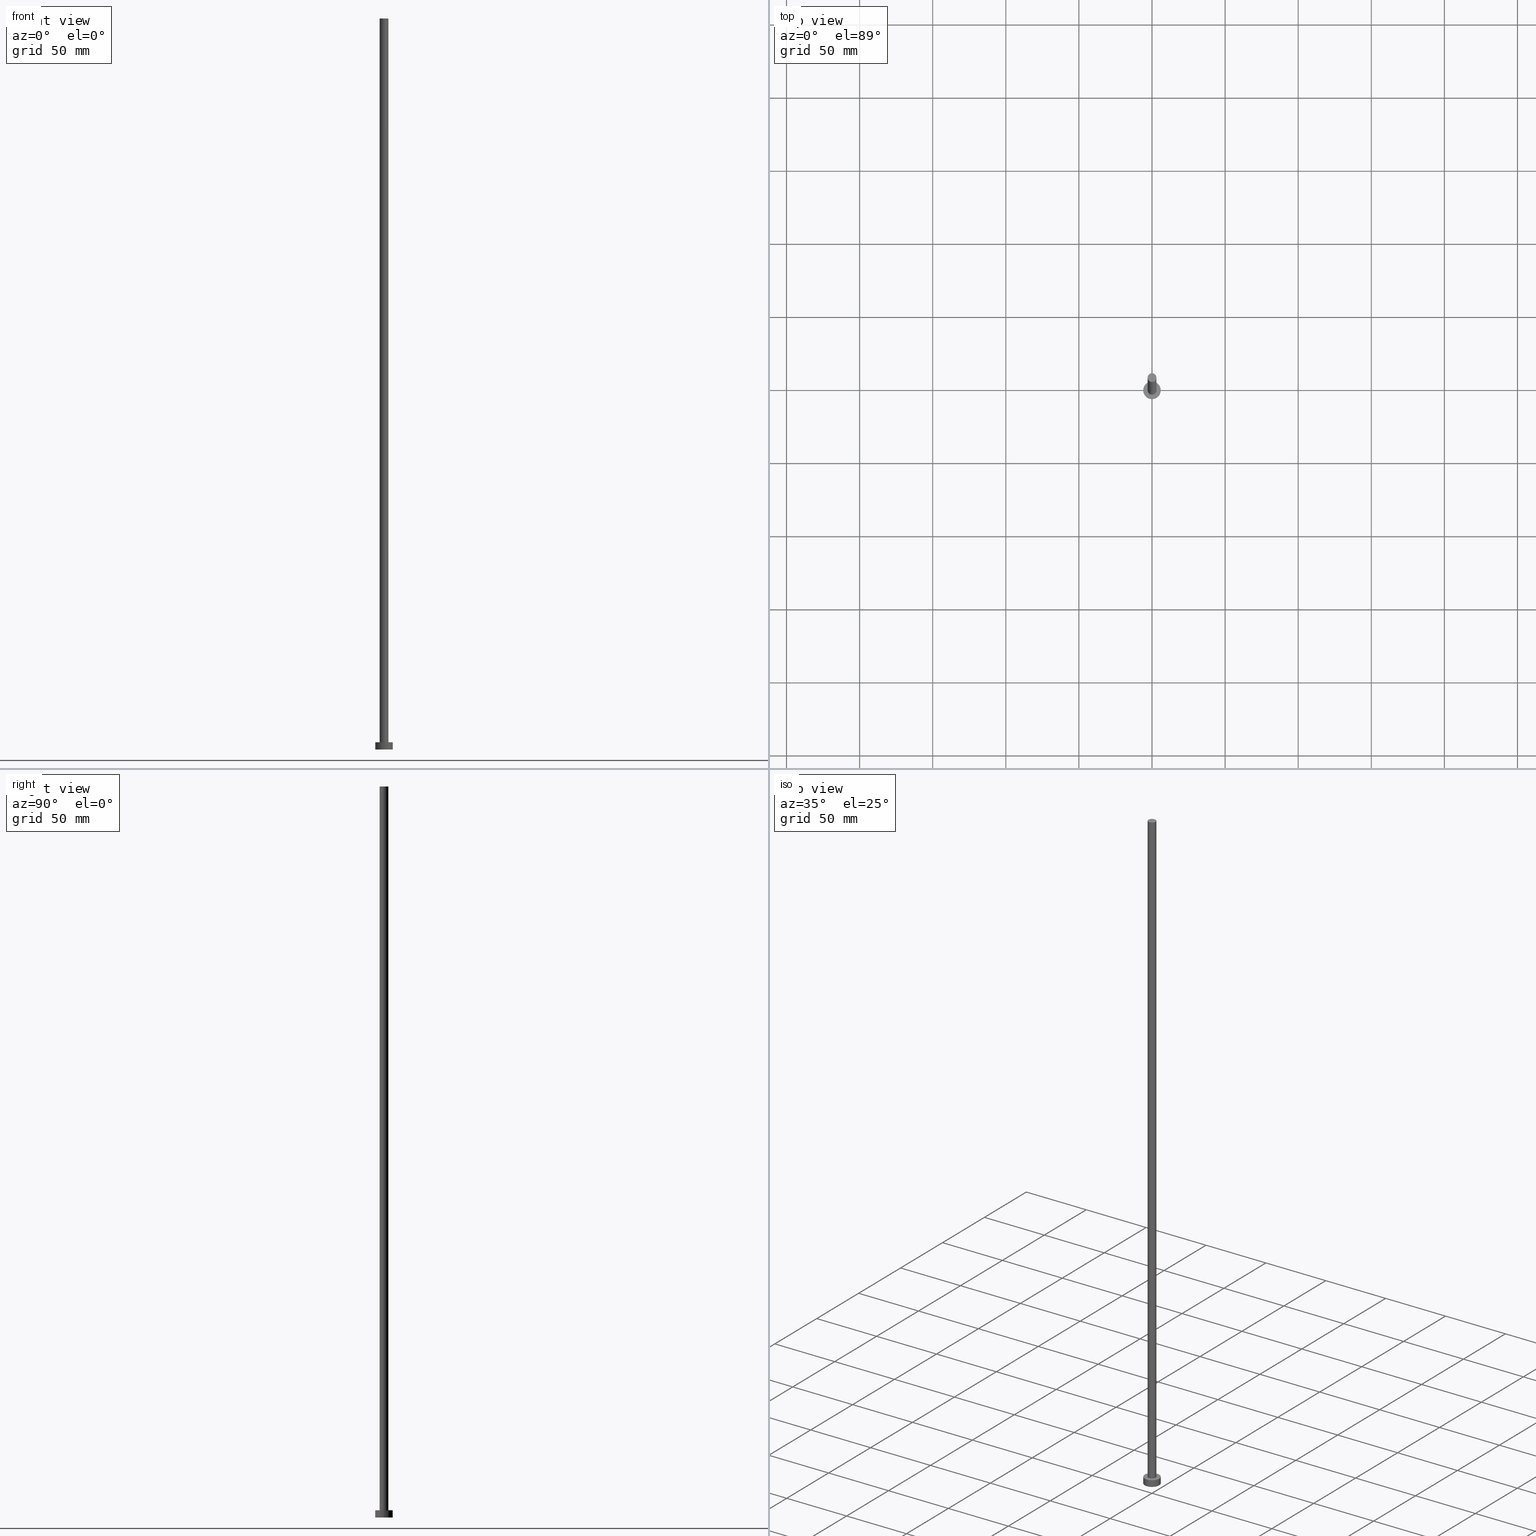
[diagram: canonical four-view strip — front | top / right | iso, engineering-drawing reading convention]
A machine part, canonical four-view strip (front | top / right | iso — engineering-drawing reading convention). The complete STEP part file that produces these views, byte-faithful:
ISO-10303-21;
HEADER;
FILE_DESCRIPTION (( 'STEP AP203' ),
    '1' );
FILE_NAME ('e400.STEP',
    '2023-02-13T15:21:25',
    ( '' ),
    ( '' ),
    'SwSTEP 2.0',
    'SolidWorks 2019',
    '' );
FILE_SCHEMA (( 'CONFIG_CONTROL_DESIGN' ));
ENDSEC;

DATA;
#1 = AXIS2_PLACEMENT_3D ( 'NONE', #112, #217, #117 ) ;
#2 = DIRECTION ( 'NONE',  ( 1.000000000000000000, 0.000000000000000000, 0.000000000000000000 ) ) ;
#3 = VERTEX_POINT ( 'NONE', #106 ) ;
#4 = ORIENTED_EDGE ( 'NONE', *, *, #161, .T. ) ;
#5 = APPLICATION_PROTOCOL_DEFINITION ( 'international standard', 'config_control_design', 1994, #11 ) ;
#6 = LINE ( 'NONE', #84, #151 ) ;
#7 = DIRECTION ( 'NONE',  ( -0.000000000000000000, -0.000000000000000000, -1.000000000000000000 ) ) ;
#8 = APPLICATION_CONTEXT ( 'configuration controlled 3d designs of mechanical parts and assemblies' ) ;
#9 = DIRECTION ( 'NONE',  ( 0.000000000000000000, 0.000000000000000000, 1.000000000000000000 ) ) ;
#10 = PRODUCT_DEFINITION_FORMATION_WITH_SPECIFIED_SOURCE ( 'LIBOVOLN�', '', #166, .NOT_KNOWN. ) ;
#11 = APPLICATION_CONTEXT ( 'configuration controlled 3d designs of mechanical parts and assemblies' ) ;
#12 = DIRECTION ( 'NONE',  ( 1.000000000000000000, 0.000000000000000000, 0.000000000000000000 ) ) ;
#13 = ADVANCED_FACE ( 'NONE', ( #208 ), #80, .T. ) ;
#14 = APPROVAL_STATUS ( 'not_yet_approved' ) ;
#15 = DATE_TIME_ROLE ( 'creation_date' ) ;
#16 = CARTESIAN_POINT ( 'NONE',  ( 0.000000000000000000, 0.000000000000000000, 5.000000000000000000 ) ) ;
#17 = FACE_OUTER_BOUND ( 'NONE', #155, .T. ) ;
#18 = CC_DESIGN_APPROVAL ( #94, ( #10 ) ) ;
#19 = AXIS2_PLACEMENT_3D ( 'NONE', #233, #47, #49 ) ;
#20 = AXIS2_PLACEMENT_3D ( 'NONE', #126, #48, #67 ) ;
#21 = ORIENTED_EDGE ( 'NONE', *, *, #60, .F. ) ;
#22 = ADVANCED_FACE ( 'NONE', ( #209, #168 ), #127, .T. ) ;
#23 = PERSON_AND_ORGANIZATION_ROLE ( 'design_owner' ) ;
#24 = DATE_AND_TIME ( #128, #66 ) ;
#25 = CARTESIAN_POINT ( 'NONE',  ( 0.000000000000000000, 0.000000000000000000, 5.000000000000000000 ) ) ;
#26 = CC_DESIGN_PERSON_AND_ORGANIZATION_ASSIGNMENT ( #206, #173, ( #10 ) ) ;
#27 = CARTESIAN_POINT ( 'NONE',  ( -3.000000000000000444, 0.000000000000000000, 500.0000000000000000 ) ) ;
#28 = DIRECTION ( 'NONE',  ( -0.000000000000000000, -0.000000000000000000, -1.000000000000000000 ) ) ;
#29 = CIRCLE ( 'NONE', #59, 6.000000000000000888 ) ;
#30 = APPROVAL_PERSON_ORGANIZATION ( #236, #45, #63 ) ;
#31 = PERSON_AND_ORGANIZATION_ROLE ( 'creator' ) ;
#32 = DIRECTION ( 'NONE',  ( 1.000000000000000000, 0.000000000000000000, 0.000000000000000000 ) ) ;
#33 = DIRECTION ( 'NONE',  ( 0.000000000000000000, 0.000000000000000000, 1.000000000000000000 ) ) ;
#34 = APPLICATION_PROTOCOL_DEFINITION ( 'international standard', 'config_control_design', 1994, #8 ) ;
#35 = CYLINDRICAL_SURFACE ( 'NONE', #36, 3.000000000000000444 ) ;
#36 = AXIS2_PLACEMENT_3D ( 'NONE', #255, #91, #213 ) ;
#37 = CARTESIAN_POINT ( 'NONE',  ( 3.000000000000000444, 3.673940397442060361E-16, 5.000000000000000000 ) ) ;
#38 = CARTESIAN_POINT ( 'NONE',  ( 0.000000000000000000, 0.000000000000000000, 500.0000000000000000 ) ) ;
#39 = EDGE_CURVE ( 'NONE', #120, #142, #69, .T. ) ;
#40 = EDGE_LOOP ( 'NONE', ( #4, #157 ) ) ;
#41 = AXIS2_PLACEMENT_3D ( 'NONE', #16, #252, #71 ) ;
#42 = VERTEX_POINT ( 'NONE', #141 ) ;
#43 = CALENDAR_DATE ( 2023, 13, 2 ) ;
#44 = PLANE ( 'NONE',  #20 ) ;
#45 = APPROVAL ( #113, 'NEUR�EN�' ) ;
#46 = CIRCLE ( 'NONE', #1, 6.000000000000000888 ) ;
#47 = DIRECTION ( 'NONE',  ( -0.000000000000000000, -0.000000000000000000, -1.000000000000000000 ) ) ;
#48 = DIRECTION ( 'NONE',  ( 0.000000000000000000, 0.000000000000000000, 1.000000000000000000 ) ) ;
#49 = DIRECTION ( 'NONE',  ( -1.000000000000000000, 0.000000000000000000, 0.000000000000000000 ) ) ;
#50 = CC_DESIGN_PERSON_AND_ORGANIZATION_ASSIGNMENT ( #51, #31, ( #221 ) ) ;
#51 = PERSON_AND_ORGANIZATION ( #179, #145 ) ;
#52 = PERSON_AND_ORGANIZATION_ROLE ( 'classification_officer' ) ;
#53 =( LENGTH_UNIT ( ) NAMED_UNIT ( * ) SI_UNIT ( .MILLI., .METRE. ) );
#54 = DIRECTION ( 'NONE',  ( 0.000000000000000000, 0.000000000000000000, 1.000000000000000000 ) ) ;
#55 = VECTOR ( 'NONE', #229, 1000.000000000000000 ) ;
#56 = AXIS2_PLACEMENT_3D ( 'NONE', #172, #146, #238 ) ;
#57 = CARTESIAN_POINT ( 'NONE',  ( 6.000000000000000888, 7.347880794884120722E-16, 5.000000000000000000 ) ) ;
#58 = ADVANCED_FACE ( 'NONE', ( #234 ), #129, .T. ) ;
#59 = AXIS2_PLACEMENT_3D ( 'NONE', #133, #33, #152 ) ;
#60 = EDGE_CURVE ( 'NONE', #182, #42, #85, .T. ) ;
#61 = APPROVAL_PERSON_ORGANIZATION ( #125, #97, #123 ) ;
#62 = DATE_AND_TIME ( #43, #93 ) ;
#63 = APPROVAL_ROLE ( '' ) ;
#64 = DIRECTION ( 'NONE',  ( -0.000000000000000000, -0.000000000000000000, -1.000000000000000000 ) ) ;
#65 = CLOSED_SHELL ( 'NONE', ( #58, #13, #223, #22, #211, #139, #81 ) ) ;
#66 = LOCAL_TIME ( 16, 21, 25.00000000000000000, #103 ) ;
#67 = DIRECTION ( 'NONE',  ( 1.000000000000000000, 0.000000000000000000, -0.000000000000000000 ) ) ;
#68 = COORDINATED_UNIVERSAL_TIME_OFFSET ( 1, 0, .AHEAD. ) ;
#69 = LINE ( 'NONE', #143, #87 ) ;
#70 = DIRECTION ( 'NONE',  ( 0.000000000000000000, 0.000000000000000000, 1.000000000000000000 ) ) ;
#71 = DIRECTION ( 'NONE',  ( 1.000000000000000000, 0.000000000000000000, 0.000000000000000000 ) ) ;
#72 = PERSON_AND_ORGANIZATION ( #179, #145 ) ;
#73 = DIRECTION ( 'NONE',  ( 1.000000000000000000, 0.000000000000000000, 0.000000000000000000 ) ) ;
#74 = AXIS2_PLACEMENT_3D ( 'NONE', #163, #250, #12 ) ;
#75 = DIRECTION ( 'NONE',  ( 0.000000000000000000, 0.000000000000000000, 1.000000000000000000 ) ) ;
#76 = ORIENTED_EDGE ( 'NONE', *, *, #135, .F. ) ;
#77 = ORIENTED_EDGE ( 'NONE', *, *, #130, .T. ) ;
#78 = VERTEX_POINT ( 'NONE', #232 ) ;
#79 = APPROVAL_ROLE ( '' ) ;
#80 = CYLINDRICAL_SURFACE ( 'NONE', #19, 6.000000000000000888 ) ;
#81 = ADVANCED_FACE ( 'NONE', ( #164 ), #44, .T. ) ;
#82 = APPROVAL_DATE_TIME ( #24, #97 ) ;
#83 = DESIGN_CONTEXT ( 'detailed design', #11, 'design' ) ;
#84 = CARTESIAN_POINT ( 'NONE',  ( -6.000000000000000888, 0.000000000000000000, 5.000000000000000000 ) ) ;
#85 = LINE ( 'NONE', #27, #55 ) ;
#86 = AXIS2_PLACEMENT_3D ( 'NONE', #187, #9, #167 ) ;
#87 = VECTOR ( 'NONE', #64, 1000.000000000000000 ) ;
#88 = APPROVAL_PERSON_ORGANIZATION ( #72, #94, #79 ) ;
#89 = EDGE_CURVE ( 'NONE', #142, #42, #121, .T. ) ;
#90 = ORIENTED_EDGE ( 'NONE', *, *, #89, .T. ) ;
#91 = DIRECTION ( 'NONE',  ( -0.000000000000000000, -0.000000000000000000, -1.000000000000000000 ) ) ;
#92 = CIRCLE ( 'NONE', #74, 3.000000000000000444 ) ;
#93 = LOCAL_TIME ( 16, 21, 25.00000000000000000, #68 ) ;
#94 = APPROVAL ( #14, 'NEUR�EN�' ) ;
#95 = EDGE_CURVE ( 'NONE', #220, #175, #165, .T. ) ;
#96 = COORDINATED_UNIVERSAL_TIME_OFFSET ( 1, 0, .AHEAD. ) ;
#97 = APPROVAL ( #226, 'NEUR�EN�' ) ;
#98 = CARTESIAN_POINT ( 'NONE',  ( -6.000000000000000888, 0.000000000000000000, 5.000000000000000000 ) ) ;
#99 = ORIENTED_EDGE ( 'NONE', *, *, #39, .F. ) ;
#100 = ORIENTED_EDGE ( 'NONE', *, *, #178, .T. ) ;
#101 = ORIENTED_EDGE ( 'NONE', *, *, #161, .F. ) ;
#102 = CALENDAR_DATE ( 2023, 13, 2 ) ;
#103 = COORDINATED_UNIVERSAL_TIME_OFFSET ( 1, 0, .AHEAD. ) ;
#104 = PRODUCT_RELATED_PRODUCT_CATEGORY ( 'detail', '', ( #166 ) ) ;
#105 = DIRECTION ( 'NONE',  ( -1.000000000000000000, 0.000000000000000000, 0.000000000000000000 ) ) ;
#106 = CARTESIAN_POINT ( 'NONE',  ( 6.000000000000000888, 7.347880794884120722E-16, 0.000000000000000000 ) ) ;
#107 = CC_DESIGN_PERSON_AND_ORGANIZATION_ASSIGNMENT ( #159, #52, ( #154 ) ) ;
#108 = AXIS2_PLACEMENT_3D ( 'NONE', #148, #75, #73 ) ;
#109 = SECURITY_CLASSIFICATION_LEVEL ( 'unclassified' ) ;
#110 = COORDINATED_UNIVERSAL_TIME_OFFSET ( 1, 0, .AHEAD. ) ;
#111 = CC_DESIGN_PERSON_AND_ORGANIZATION_ASSIGNMENT ( #254, #23, ( #166 ) ) ;
#112 = CARTESIAN_POINT ( 'NONE',  ( 0.000000000000000000, 0.000000000000000000, 0.000000000000000000 ) ) ;
#113 = APPROVAL_STATUS ( 'not_yet_approved' ) ;
#114 = CC_DESIGN_SECURITY_CLASSIFICATION ( #154, ( #10 ) ) ;
#115 = LINE ( 'NONE', #193, #240 ) ;
#116 = FACE_OUTER_BOUND ( 'NONE', #177, .T. ) ;
#117 = DIRECTION ( 'NONE',  ( 1.000000000000000000, 0.000000000000000000, 0.000000000000000000 ) ) ;
#118 = EDGE_CURVE ( 'NONE', #175, #78, #6, .T. ) ;
#119 = EDGE_LOOP ( 'NONE', ( #137, #77 ) ) ;
#120 = VERTEX_POINT ( 'NONE', #247 ) ;
#121 = CIRCLE ( 'NONE', #86, 3.000000000000000444 ) ;
#122 = CIRCLE ( 'NONE', #41, 6.000000000000000888 ) ;
#123 = APPROVAL_ROLE ( '' ) ;
#124 = ORIENTED_EDGE ( 'NONE', *, *, #39, .T. ) ;
#125 = PERSON_AND_ORGANIZATION ( #179, #145 ) ;
#126 = CARTESIAN_POINT ( 'NONE',  ( 0.000000000000000000, 0.000000000000000000, 500.0000000000000000 ) ) ;
#127 = PLANE ( 'NONE',  #200 ) ;
#128 = CALENDAR_DATE ( 2023, 13, 2 ) ;
#129 = CYLINDRICAL_SURFACE ( 'NONE', #132, 3.000000000000000444 ) ;
#130 = EDGE_CURVE ( 'NONE', #120, #182, #92, .T. ) ;
#131 = CYLINDRICAL_SURFACE ( 'NONE', #180, 6.000000000000000888 ) ;
#132 = AXIS2_PLACEMENT_3D ( 'NONE', #140, #7, #105 ) ;
#133 = CARTESIAN_POINT ( 'NONE',  ( 0.000000000000000000, 0.000000000000000000, 0.000000000000000000 ) ) ;
#134 = ORIENTED_EDGE ( 'NONE', *, *, #176, .F. ) ;
#135 = EDGE_CURVE ( 'NONE', #42, #142, #224, .T. ) ;
#136 = ORIENTED_EDGE ( 'NONE', *, *, #130, .F. ) ;
#137 = ORIENTED_EDGE ( 'NONE', *, *, #174, .T. ) ;
#138 = DATE_TIME_ROLE ( 'classification_date' ) ;
#139 = ADVANCED_FACE ( 'NONE', ( #116 ), #35, .T. ) ;
#140 = CARTESIAN_POINT ( 'NONE',  ( 0.000000000000000000, 0.000000000000000000, 500.0000000000000000 ) ) ;
#141 = CARTESIAN_POINT ( 'NONE',  ( -3.000000000000000444, 0.000000000000000000, 5.000000000000000000 ) ) ;
#142 = VERTEX_POINT ( 'NONE', #37 ) ;
#143 = CARTESIAN_POINT ( 'NONE',  ( 3.000000000000000444, 3.673940397442060361E-16, 500.0000000000000000 ) ) ;
#144 = DATE_AND_TIME ( #235, #188 ) ;
#145 = ORGANIZATION ( 'NEUR�EN�', 'NEUR�EN�', '' ) ;
#146 = DIRECTION ( 'NONE',  ( 0.000000000000000000, 0.000000000000000000, 1.000000000000000000 ) ) ;
#147 = CARTESIAN_POINT ( 'NONE',  ( 0.000000000000000000, 0.000000000000000000, 0.000000000000000000 ) ) ;
#148 = CARTESIAN_POINT ( 'NONE',  ( 0.000000000000000000, 0.000000000000000000, 5.000000000000000000 ) ) ;
#149 = EDGE_CURVE ( 'NONE', #78, #3, #29, .T. ) ;
#150 = DIRECTION ( 'NONE',  ( -0.000000000000000000, -0.000000000000000000, -1.000000000000000000 ) ) ;
#151 = VECTOR ( 'NONE', #28, 1000.000000000000000 ) ;
#152 = DIRECTION ( 'NONE',  ( 1.000000000000000000, 0.000000000000000000, 0.000000000000000000 ) ) ;
#153 = EDGE_LOOP ( 'NONE', ( #76, #205 ) ) ;
#154 = SECURITY_CLASSIFICATION ( '', '', #109 ) ;
#155 = EDGE_LOOP ( 'NONE', ( #156, #134 ) ) ;
#156 = ORIENTED_EDGE ( 'NONE', *, *, #149, .F. ) ;
#157 = ORIENTED_EDGE ( 'NONE', *, *, #95, .T. ) ;
#158 = ORIENTED_EDGE ( 'NONE', *, *, #174, .F. ) ;
#159 = PERSON_AND_ORGANIZATION ( #179, #145 ) ;
#160 = CARTESIAN_POINT ( 'NONE',  ( 0.000000000000000000, 0.000000000000000000, 5.000000000000000000 ) ) ;
#161 = EDGE_CURVE ( 'NONE', #175, #220, #122, .T. ) ;
#162 = APPROVAL_DATE_TIME ( #144, #94 ) ;
#163 = CARTESIAN_POINT ( 'NONE',  ( 0.000000000000000000, 0.000000000000000000, 500.0000000000000000 ) ) ;
#164 = FACE_OUTER_BOUND ( 'NONE', #119, .T. ) ;
#165 = CIRCLE ( 'NONE', #201, 6.000000000000000888 ) ;
#166 = PRODUCT ( 'e400', 'e400', '', ( #210 ) ) ;
#167 = DIRECTION ( 'NONE',  ( 1.000000000000000000, 0.000000000000000000, 0.000000000000000000 ) ) ;
#168 = FACE_OUTER_BOUND ( 'NONE', #40, .T. ) ;
#169 = PLANE ( 'NONE',  #56 ) ;
#170 = AXIS2_PLACEMENT_3D ( 'NONE', #38, #54, #2 ) ;
#171 = PRODUCT_DEFINITION_SHAPE ( 'NONE', 'NONE',  #221 ) ;
#172 = CARTESIAN_POINT ( 'NONE',  ( 0.000000000000000000, 0.000000000000000000, 0.000000000000000000 ) ) ;
#173 = PERSON_AND_ORGANIZATION_ROLE ( 'creator' ) ;
#174 = EDGE_CURVE ( 'NONE', #182, #120, #216, .T. ) ;
#175 = VERTEX_POINT ( 'NONE', #98 ) ;
#176 = EDGE_CURVE ( 'NONE', #3, #78, #46, .T. ) ;
#177 = EDGE_LOOP ( 'NONE', ( #99, #158, #242, #199 ) ) ;
#178 = EDGE_CURVE ( 'NONE', #220, #3, #115, .T. ) ;
#179 = PERSON ( 'NEUR�EN�', 'NEUR�EN�', 'NEUR�EN�', ('NEUR�EN�'), ('NEUR�EN�'), ('NEUR�EN�') ) ;
#180 = AXIS2_PLACEMENT_3D ( 'NONE', #237, #212, #191 ) ;
#181 = CC_DESIGN_DATE_AND_TIME_ASSIGNMENT ( #62, #138, ( #154 ) ) ;
#182 = VERTEX_POINT ( 'NONE', #194 ) ;
#183 = APPROVAL_DATE_TIME ( #190, #45 ) ;
#184 = UNCERTAINTY_MEASURE_WITH_UNIT (LENGTH_MEASURE( 1.000000000000000082E-05 ), #53, 'distance_accuracy_value', 'NONE');
#185 = DIRECTION ( 'NONE',  ( 0.000000000000000000, 0.000000000000000000, 1.000000000000000000 ) ) ;
#186 = MANIFOLD_SOLID_BREP ( 'P�idat vysunut�m3', #65 ) ;
#187 = CARTESIAN_POINT ( 'NONE',  ( 0.000000000000000000, 0.000000000000000000, 5.000000000000000000 ) ) ;
#188 = LOCAL_TIME ( 16, 21, 25.00000000000000000, #96 ) ;
#189 = SHAPE_DEFINITION_REPRESENTATION ( #171, #195 ) ;
#190 = DATE_AND_TIME ( #102, #249 ) ;
#191 = DIRECTION ( 'NONE',  ( -1.000000000000000000, 0.000000000000000000, 0.000000000000000000 ) ) ;
#192 = DATE_AND_TIME ( #214, #219 ) ;
#193 = CARTESIAN_POINT ( 'NONE',  ( 6.000000000000000888, 7.347880794884120722E-16, 5.000000000000000000 ) ) ;
#194 = CARTESIAN_POINT ( 'NONE',  ( -3.000000000000000444, 0.000000000000000000, 500.0000000000000000 ) ) ;
#195 = ADVANCED_BREP_SHAPE_REPRESENTATION ( 'e400', ( #186, #244 ), #231 ) ;
#196 = CC_DESIGN_DATE_AND_TIME_ASSIGNMENT ( #192, #15, ( #221 ) ) ;
#197 = EDGE_LOOP ( 'NONE', ( #241, #101, #222, #245 ) ) ;
#198 = CC_DESIGN_PERSON_AND_ORGANIZATION_ASSIGNMENT ( #204, #228, ( #10 ) ) ;
#199 = ORIENTED_EDGE ( 'NONE', *, *, #135, .T. ) ;
#200 = AXIS2_PLACEMENT_3D ( 'NONE', #160, #207, #251 ) ;
#201 = AXIS2_PLACEMENT_3D ( 'NONE', #25, #185, #248 ) ;
#202 = CC_DESIGN_APPROVAL ( #45, ( #221 ) ) ;
#203 = ORIENTED_EDGE ( 'NONE', *, *, #176, .T. ) ;
#204 = PERSON_AND_ORGANIZATION ( #179, #145 ) ;
#205 = ORIENTED_EDGE ( 'NONE', *, *, #89, .F. ) ;
#206 = PERSON_AND_ORGANIZATION ( #179, #145 ) ;
#207 = DIRECTION ( 'NONE',  ( 0.000000000000000000, 0.000000000000000000, 1.000000000000000000 ) ) ;
#208 = FACE_OUTER_BOUND ( 'NONE', #225, .T. ) ;
#209 = FACE_BOUND ( 'NONE', #153, .T. ) ;
#210 = MECHANICAL_CONTEXT ( 'NONE', #8, 'mechanical' ) ;
#211 = ADVANCED_FACE ( 'NONE', ( #17 ), #169, .F. ) ;
#212 = DIRECTION ( 'NONE',  ( -0.000000000000000000, -0.000000000000000000, -1.000000000000000000 ) ) ;
#213 = DIRECTION ( 'NONE',  ( -1.000000000000000000, 0.000000000000000000, 0.000000000000000000 ) ) ;
#214 = CALENDAR_DATE ( 2023, 13, 2 ) ;
#215 =( NAMED_UNIT ( * ) PLANE_ANGLE_UNIT ( ) SI_UNIT ( $, .RADIAN. ) );
#216 = CIRCLE ( 'NONE', #170, 3.000000000000000444 ) ;
#217 = DIRECTION ( 'NONE',  ( 0.000000000000000000, 0.000000000000000000, 1.000000000000000000 ) ) ;
#218 =( NAMED_UNIT ( * ) SI_UNIT ( $, .STERADIAN. ) SOLID_ANGLE_UNIT ( ) );
#219 = LOCAL_TIME ( 16, 21, 25.00000000000000000, #246 ) ;
#220 = VERTEX_POINT ( 'NONE', #57 ) ;
#221 = PRODUCT_DEFINITION ( 'NEZN�M�', '', #10, #83 ) ;
#222 = ORIENTED_EDGE ( 'NONE', *, *, #118, .T. ) ;
#223 = ADVANCED_FACE ( 'NONE', ( #239 ), #131, .T. ) ;
#224 = CIRCLE ( 'NONE', #108, 3.000000000000000444 ) ;
#225 = EDGE_LOOP ( 'NONE', ( #227, #100, #203, #243 ) ) ;
#226 = APPROVAL_STATUS ( 'not_yet_approved' ) ;
#227 = ORIENTED_EDGE ( 'NONE', *, *, #95, .F. ) ;
#228 = PERSON_AND_ORGANIZATION_ROLE ( 'design_supplier' ) ;
#229 = DIRECTION ( 'NONE',  ( -0.000000000000000000, -0.000000000000000000, -1.000000000000000000 ) ) ;
#230 = EDGE_LOOP ( 'NONE', ( #136, #124, #90, #21 ) ) ;
#231 =( GEOMETRIC_REPRESENTATION_CONTEXT ( 3 ) GLOBAL_UNCERTAINTY_ASSIGNED_CONTEXT ( ( #184 ) ) GLOBAL_UNIT_ASSIGNED_CONTEXT ( ( #53, #215, #218 ) ) REPRESENTATION_CONTEXT ( 'NONE', 'WORKASPACE' ) );
#232 = CARTESIAN_POINT ( 'NONE',  ( -6.000000000000000888, 0.000000000000000000, 0.000000000000000000 ) ) ;
#233 = CARTESIAN_POINT ( 'NONE',  ( 0.000000000000000000, 0.000000000000000000, 5.000000000000000000 ) ) ;
#234 = FACE_OUTER_BOUND ( 'NONE', #230, .T. ) ;
#235 = CALENDAR_DATE ( 2023, 13, 2 ) ;
#236 = PERSON_AND_ORGANIZATION ( #179, #145 ) ;
#237 = CARTESIAN_POINT ( 'NONE',  ( 0.000000000000000000, 0.000000000000000000, 5.000000000000000000 ) ) ;
#238 = DIRECTION ( 'NONE',  ( 1.000000000000000000, 0.000000000000000000, -0.000000000000000000 ) ) ;
#239 = FACE_OUTER_BOUND ( 'NONE', #197, .T. ) ;
#240 = VECTOR ( 'NONE', #150, 1000.000000000000000 ) ;
#241 = ORIENTED_EDGE ( 'NONE', *, *, #178, .F. ) ;
#242 = ORIENTED_EDGE ( 'NONE', *, *, #60, .T. ) ;
#243 = ORIENTED_EDGE ( 'NONE', *, *, #118, .F. ) ;
#244 = AXIS2_PLACEMENT_3D ( 'NONE', #147, #70, #32 ) ;
#245 = ORIENTED_EDGE ( 'NONE', *, *, #149, .T. ) ;
#246 = COORDINATED_UNIVERSAL_TIME_OFFSET ( 1, 0, .AHEAD. ) ;
#247 = CARTESIAN_POINT ( 'NONE',  ( 3.000000000000000444, 3.673940397442060361E-16, 500.0000000000000000 ) ) ;
#248 = DIRECTION ( 'NONE',  ( 1.000000000000000000, 0.000000000000000000, 0.000000000000000000 ) ) ;
#249 = LOCAL_TIME ( 16, 21, 25.00000000000000000, #110 ) ;
#250 = DIRECTION ( 'NONE',  ( 0.000000000000000000, 0.000000000000000000, 1.000000000000000000 ) ) ;
#251 = DIRECTION ( 'NONE',  ( 1.000000000000000000, 0.000000000000000000, -0.000000000000000000 ) ) ;
#252 = DIRECTION ( 'NONE',  ( 0.000000000000000000, 0.000000000000000000, 1.000000000000000000 ) ) ;
#253 = CC_DESIGN_APPROVAL ( #97, ( #154 ) ) ;
#254 = PERSON_AND_ORGANIZATION ( #179, #145 ) ;
#255 = CARTESIAN_POINT ( 'NONE',  ( 0.000000000000000000, 0.000000000000000000, 500.0000000000000000 ) ) ;
ENDSEC;
END-ISO-10303-21;
